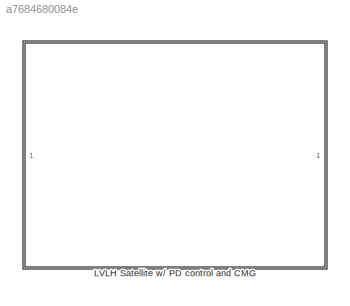
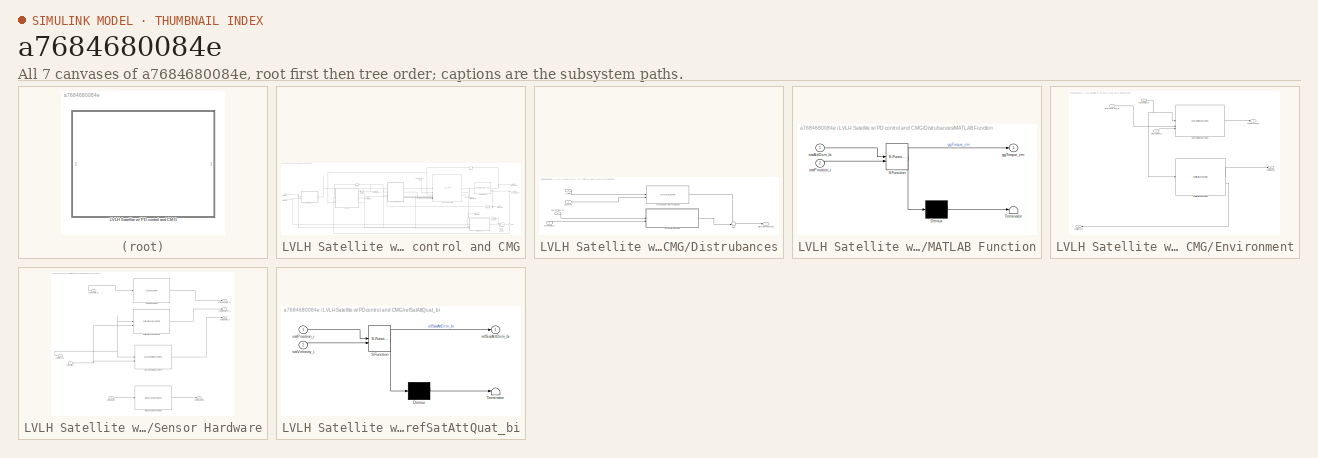
[diagram: thumbnail index - all 7 canvases of the model, root first then tree order]
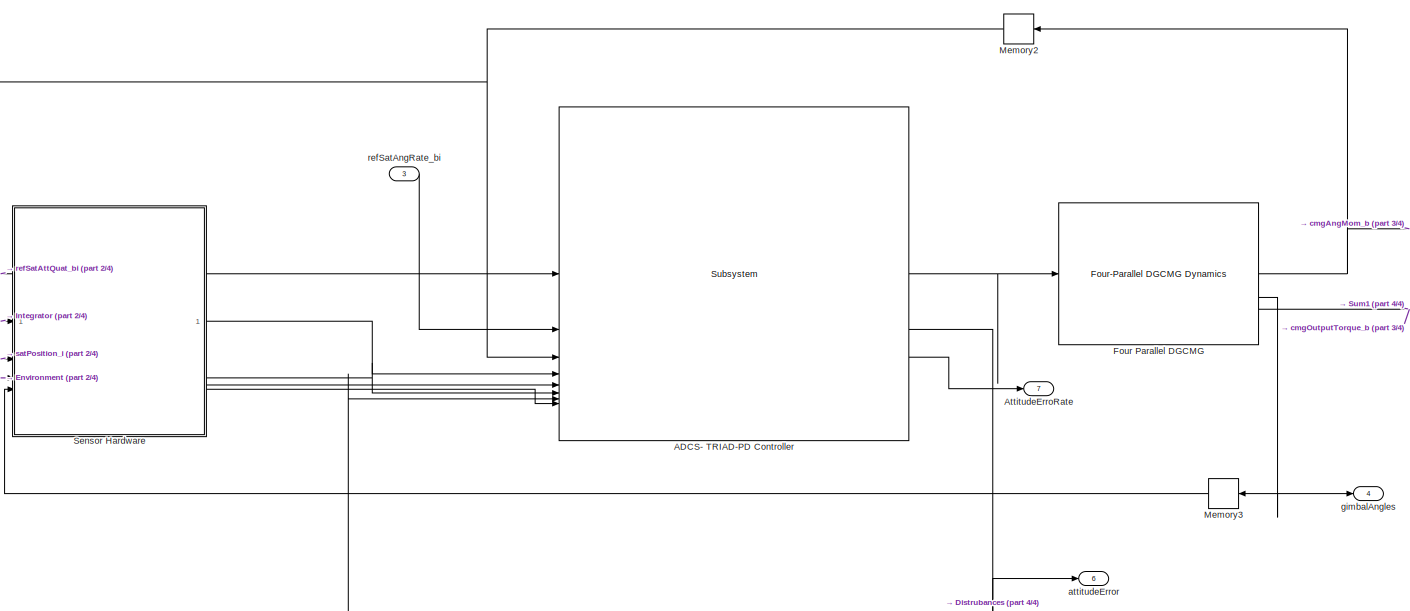
[diagram: LVLH Satellite w/ PD control and CMG - part 1/4, middle right region]
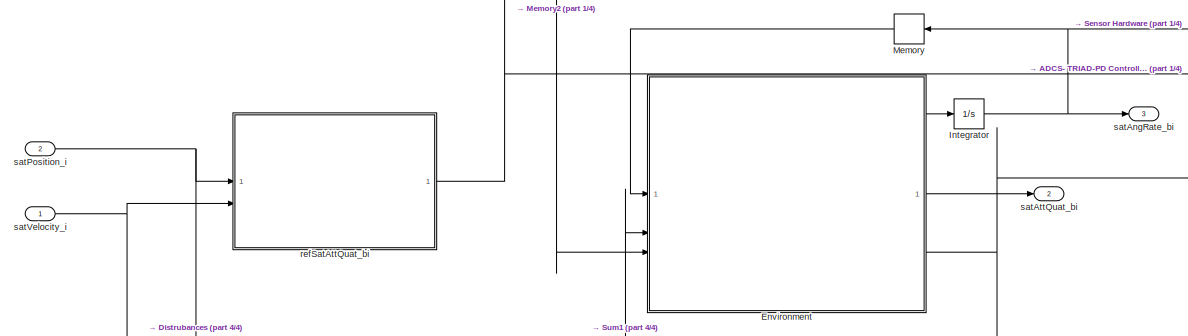
[diagram: LVLH Satellite w/ PD control and CMG - part 2/4, middle left region]
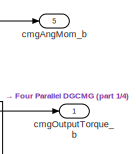
[diagram: LVLH Satellite w/ PD control and CMG - part 3/4, middle right region]
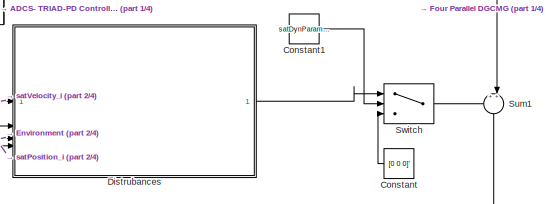
[diagram: LVLH Satellite w/ PD control and CMG - part 4/4, bottom right region]
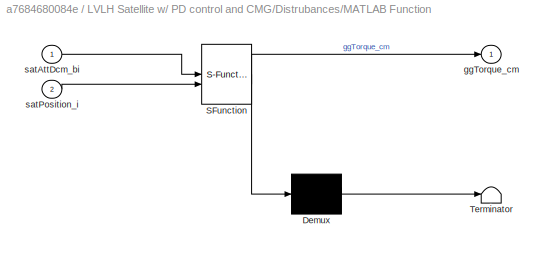
MODEL slx_a7684680084e
KIND library
CONFIG AbsTol = auto
CONFIG EnableMultiTasking = off
CONFIG FixedStep = auto
CONFIG MaxStep = auto
CONFIG MinStep = auto
CONFIG RelTol = 1e-3
CONFIG SampleTimeConstraint = Unconstrained
CONFIG SolverName = VariableStepAuto
CONFIG StartTime = 0.0
CONFIG StopTime = 10.0
BLOCK [SubSystem] LVLH Satellite w// PD control and CMG
BLOCK [Reference] LVLH Satellite w// PD control and CMG/ADCS- TRIAD-PD Controller  REF=satAttDcmPDController_sl/Subsystem
  SourceBlock = satAttDcmPDController_sl/Subsystem
BLOCK [Outport] LVLH Satellite w// PD control and CMG/AttitudeErroRate
  Port = 7
BLOCK [Constant] LVLH Satellite w// PD control and CMG/Constant
  NameLocation = top
  Value = [0 0 0]'
BLOCK [Constant] LVLH Satellite w// PD control and CMG/Constant1
  Value = satDynParams.distTorqueFlag
BLOCK [SubSystem] LVLH Satellite w// PD control and CMG/Distrubances
BLOCK [Reference] LVLH Satellite w// PD control and CMG/Distrubances/Atmoshperic Perturbations  REF=atmoAttDisturbanceISS_sl/MATLAB Function
  SourceBlock = atmoAttDisturbanceISS_sl/MATLAB Function
BLOCK [SubSystem] LVLH Satellite w// PD control and CMG/Distrubances/MATLAB Function
  ErrorFcn = Stateflow.Translate.translate
  PermitHierarchicalResolution = ExplicitOnly
  SFBlockType = MATLAB Function
  TreatAsAtomicUnit = on
BLOCK [Demux] LVLH Satellite w// PD control and CMG/Distrubances/MATLAB Function/ Demux 
  Outputs = 1
BLOCK [S-Function] LVLH Satellite w// PD control and CMG/Distrubances/MATLAB Function/ SFunction 
  EnableBusSupport = off
  FunctionName = sf_sfun
  PortCounts = [2 2]
  SFcnIsStateOwnerBlock = off
  SFunctionDeploymentMode = off
  Tag = Stateflow S-Function 1
BLOCK [Terminator] LVLH Satellite w// PD control and CMG/Distrubances/MATLAB Function/ Terminator 
BLOCK [Outport] LVLH Satellite w// PD control and CMG/Distrubances/MATLAB Function/ggTorque_cm
BLOCK [Inport] LVLH Satellite w// PD control and CMG/Distrubances/MATLAB Function/satAttDcm_bi
BLOCK [Inport] LVLH Satellite w// PD control and CMG/Distrubances/MATLAB Function/satPosition_i
  Port = 2
BLOCK [Sum] LVLH Satellite w// PD control and CMG/Distrubances/Sum
  Inputs = ++|
BLOCK [Inport] LVLH Satellite w// PD control and CMG/Distrubances/attError
  Port = 2
BLOCK [Outport] LVLH Satellite w// PD control and CMG/Distrubances/disturbanceTorque
BLOCK [Inport] LVLH Satellite w// PD control and CMG/Distrubances/satAttDcm_bi
  Port = 3
BLOCK [Inport] LVLH Satellite w// PD control and CMG/Distrubances/satPosition_i
  Port = 4
BLOCK [Inport] LVLH Satellite w// PD control and CMG/Distrubances/v_abs
BLOCK [SubSystem] LVLH Satellite w// PD control and CMG/Environment
BLOCK [Reference] LVLH Satellite w// PD control and CMG/Environment/Euler Rotational Dynamics   REF=satEulerDyn_sl/Euler Rotational Dynamics 
  SourceBlock = satEulerDyn_sl/Euler Rotational Dynamics
BLOCK [Reference] LVLH Satellite w// PD control and CMG/Environment/Satellite Attiude Kinematics  REF=satAttKinematics_sl/Satellite Attiude Kinematics
  SourceBlock = satAttKinematics_sl/Satellite Attiude Kinematics
BLOCK [Inport] LVLH Satellite w// PD control and CMG/Environment/cmgAngMom_b
  Port = 3
BLOCK [Inport] LVLH Satellite w// PD control and CMG/Environment/externalTorque_bi
  Port = 2
BLOCK [Outport] LVLH Satellite w// PD control and CMG/Environment/satAngAccel_bi
BLOCK [Inport] LVLH Satellite w// PD control and CMG/Environment/satAngRate_bi
BLOCK [Outport] LVLH Satellite w// PD control and CMG/Environment/satAttDcm_bi
  Port = 3
BLOCK [Outport] LVLH Satellite w// PD control and CMG/Environment/satAttQuat_bi
  Port = 2
BLOCK [Reference] LVLH Satellite w// PD control and CMG/Four Parallel DGCMG  REF=dgcmgFourParallelArray_sl/Four-Parallel DGCMG Dynamics
  SourceBlock = dgcmgFourParallelArray_sl/Four-Parallel DGCMG Dynamics
BLOCK [Integrator] LVLH Satellite w// PD control and CMG/Integrator
  InitialCondition = satDynParams.satAngRate0
BLOCK [Memory] LVLH Satellite w// PD control and CMG/Memory
  InitialCondition = satDynParams.satAngRate0
  NameLocation = top
BLOCK [Memory] LVLH Satellite w// PD control and CMG/Memory2
  InitialCondition = [0 0 0]'
  NameLocation = top
BLOCK [Memory] LVLH Satellite w// PD control and CMG/Memory3
  InitialCondition = hwParams.gimbalAngles0
  NameLocation = top
BLOCK [SubSystem] LVLH Satellite w// PD control and CMG/Sensor Hardware
BLOCK [Reference] LVLH Satellite w// PD control and CMG/Sensor Hardware/Earth Horizon Measurments  REF=earthHorizonSensorHW_sl/Earth Horizon Measurments
  SourceBlock = earthHorizonSensorHW_sl/Earth Horizon Measurments
BLOCK [Reference] LVLH Satellite w// PD control and CMG/Sensor Hardware/Gimbal Angle Measurments  REF=gimbalSensorHW_sl/Gimbal Angle Measurments
  SourceBlock = gimbalSensorHW_sl/Gimbal Angle Measurments
BLOCK [Reference] LVLH Satellite w// PD control and CMG/Sensor Hardware/Gyro Measurments  REF=gyroSensorHW_sl/Gyro Measurments
  SourceBlock = gyroSensorHW_sl/Gyro Measurments
BLOCK [Reference] LVLH Satellite w// PD control and CMG/Sensor Hardware/Magnetometer Measurments  REF=magnetometerSensorHW_sl/Magnetometer Measurments
  SourceBlock = magnetometerSensorHW_sl/Magnetometer Measurments
BLOCK [Outport] LVLH Satellite w// PD control and CMG/Sensor Hardware/estEarthHorizon_b
  Port = 2
BLOCK [Outport] LVLH Satellite w// PD control and CMG/Sensor Hardware/estGimbalRates
  Port = 4
BLOCK [Outport] LVLH Satellite w// PD control and CMG/Sensor Hardware/estMagField_b
  Port = 3
BLOCK [Outport] LVLH Satellite w// PD control and CMG/Sensor Hardware/estSatAngRate_bi
BLOCK [Inport] LVLH Satellite w// PD control and CMG/Sensor Hardware/gimbalRates
  Port = 4
BLOCK [Inport] LVLH Satellite w// PD control and CMG/Sensor Hardware/satAngRate_bi
BLOCK [Inport] LVLH Satellite w// PD control and CMG/Sensor Hardware/satAttDcm_bi
  Port = 3
BLOCK [Inport] LVLH Satellite w// PD control and CMG/Sensor Hardware/satPosition_i
  Port = 2
BLOCK [Sum] LVLH Satellite w// PD control and CMG/Sum1
  Inputs = ++|
  NameLocation = left
BLOCK [Switch] LVLH Satellite w// PD control and CMG/Switch
  InputSameDT = off
  SaturateOnIntegerOverflow = off
BLOCK [Outport] LVLH Satellite w// PD control and CMG/attitudeError
  Port = 6
BLOCK [Outport] LVLH Satellite w// PD control and CMG/cmgAngMom_b
  Port = 5
BLOCK [Outport] LVLH Satellite w// PD control and CMG/cmgOutputTorque_b
BLOCK [Outport] LVLH Satellite w// PD control and CMG/gimbalAngles
  Port = 4
BLOCK [Inport] LVLH Satellite w// PD control and CMG/refSatAngRate_bi
  Port = 3
BLOCK [SubSystem] LVLH Satellite w// PD control and CMG/refSatAttQuat_bi
  ErrorFcn = Stateflow.Translate.translate
  PermitHierarchicalResolution = ExplicitOnly
  SFBlockType = MATLAB Function
  TreatAsAtomicUnit = on
BLOCK [Demux] LVLH Satellite w// PD control and CMG/refSatAttQuat_bi/ Demux 
  Outputs = 1
BLOCK [S-Function] LVLH Satellite w// PD control and CMG/refSatAttQuat_bi/ SFunction 
  EnableBusSupport = off
  FunctionName = sf_sfun
  PortCounts = [2 2]
  SFcnIsStateOwnerBlock = off
  SFunctionDeploymentMode = off
  Tag = Stateflow S-Function 2
BLOCK [Terminator] LVLH Satellite w// PD control and CMG/refSatAttQuat_bi/ Terminator 
BLOCK [Outport] LVLH Satellite w// PD control and CMG/refSatAttQuat_bi/refSatAttDcm_bi
BLOCK [Inport] LVLH Satellite w// PD control and CMG/refSatAttQuat_bi/satPosition_i
BLOCK [Inport] LVLH Satellite w// PD control and CMG/refSatAttQuat_bi/satVelocity_i
  Port = 2
BLOCK [Outport] LVLH Satellite w// PD control and CMG/satAngRate_bi
  Port = 3
BLOCK [Outport] LVLH Satellite w// PD control and CMG/satAttQuat_bi
  Port = 2
BLOCK [Inport] LVLH Satellite w// PD control and CMG/satPosition_i
  Port = 2
BLOCK [Inport] LVLH Satellite w// PD control and CMG/satVelocity_i
LINE LVLH Satellite w// PD control and CMG/ADCS- TRIAD-PD Controller:1 -> LVLH Satellite w// PD control and CMG/Four Parallel DGCMG:1
NET LVLH Satellite w// PD control and CMG/ADCS- TRIAD-PD Controller:2 -> LVLH Satellite w// PD control and CMG/Distrubances:2, LVLH Satellite w// PD control and CMG/attitudeError:1
LINE LVLH Satellite w// PD control and CMG/ADCS- TRIAD-PD Controller:3 -> LVLH Satellite w// PD control and CMG/AttitudeErroRate:1
LINE LVLH Satellite w// PD control and CMG/Constant1:1 -> LVLH Satellite w// PD control and CMG/Switch:2
LINE LVLH Satellite w// PD control and CMG/Constant:1 -> LVLH Satellite w// PD control and CMG/Switch:3
LINE LVLH Satellite w// PD control and CMG/Distrubances/Atmoshperic Perturbations:1 -> LVLH Satellite w// PD control and CMG/Distrubances/Sum:1
LINE LVLH Satellite w// PD control and CMG/Distrubances/MATLAB Function:1 -> LVLH Satellite w// PD control and CMG/Distrubances/Sum:2
LINE LVLH Satellite w// PD control and CMG/Distrubances/Sum:1 -> LVLH Satellite w// PD control and CMG/Distrubances/disturbanceTorque:1
LINE LVLH Satellite w// PD control and CMG/Distrubances/attError:1 -> LVLH Satellite w// PD control and CMG/Distrubances/Atmoshperic Perturbations:2
LINE LVLH Satellite w// PD control and CMG/Distrubances/satAttDcm_bi:1 -> LVLH Satellite w// PD control and CMG/Distrubances/MATLAB Function:1
LINE LVLH Satellite w// PD control and CMG/Distrubances/satPosition_i:1 -> LVLH Satellite w// PD control and CMG/Distrubances/MATLAB Function:2
LINE LVLH Satellite w// PD control and CMG/Distrubances/v_abs:1 -> LVLH Satellite w// PD control and CMG/Distrubances/Atmoshperic Perturbations:1
LINE LVLH Satellite w// PD control and CMG/Distrubances:1 -> LVLH Satellite w// PD control and CMG/Switch:1
LINE LVLH Satellite w// PD control and CMG/Environment/Euler Rotational Dynamics :1 -> LVLH Satellite w// PD control and CMG/Environment/satAngAccel_bi:1
LINE LVLH Satellite w// PD control and CMG/Environment/Satellite Attiude Kinematics:1 -> LVLH Satellite w// PD control and CMG/Environment/satAttQuat_bi:1
LINE LVLH Satellite w// PD control and CMG/Environment/Satellite Attiude Kinematics:2 -> LVLH Satellite w// PD control and CMG/Environment/satAttDcm_bi:1
LINE LVLH Satellite w// PD control and CMG/Environment/cmgAngMom_b:1 -> LVLH Satellite w// PD control and CMG/Environment/Euler Rotational Dynamics :3
LINE LVLH Satellite w// PD control and CMG/Environment/externalTorque_bi:1 -> LVLH Satellite w// PD control and CMG/Environment/Euler Rotational Dynamics :2
NET LVLH Satellite w// PD control and CMG/Environment/satAngRate_bi:1 -> LVLH Satellite w// PD control and CMG/Environment/Euler Rotational Dynamics :1, LVLH Satellite w// PD control and CMG/Environment/Satellite Attiude Kinematics:1
LINE LVLH Satellite w// PD control and CMG/Environment:1 -> LVLH Satellite w// PD control and CMG/Integrator:1
LINE LVLH Satellite w// PD control and CMG/Environment:2 -> LVLH Satellite w// PD control and CMG/satAttQuat_bi:1
NET LVLH Satellite w// PD control and CMG/Environment:3 -> LVLH Satellite w// PD control and CMG/Distrubances:3, LVLH Satellite w// PD control and CMG/Sensor Hardware:3
NET LVLH Satellite w// PD control and CMG/Four Parallel DGCMG:1 -> LVLH Satellite w// PD control and CMG/Memory2:1, LVLH Satellite w// PD control and CMG/cmgAngMom_b:1
NET LVLH Satellite w// PD control and CMG/Four Parallel DGCMG:2 -> LVLH Satellite w// PD control and CMG/Memory3:1, LVLH Satellite w// PD control and CMG/gimbalAngles:1
NET LVLH Satellite w// PD control and CMG/Four Parallel DGCMG:3 -> LVLH Satellite w// PD control and CMG/Sum1:2, LVLH Satellite w// PD control and CMG/cmgOutputTorque_b:1
NET LVLH Satellite w// PD control and CMG/Integrator:1 -> LVLH Satellite w// PD control and CMG/Memory:1, LVLH Satellite w// PD control and CMG/Sensor Hardware:1, LVLH Satellite w// PD control and CMG/satAngRate_bi:1
NET LVLH Satellite w// PD control and CMG/Memory2:1 -> LVLH Satellite w// PD control and CMG/ADCS- TRIAD-PD Controller:3, LVLH Satellite w// PD control and CMG/Environment:3
LINE LVLH Satellite w// PD control and CMG/Memory3:1 -> LVLH Satellite w// PD control and CMG/Sensor Hardware:4
LINE LVLH Satellite w// PD control and CMG/Memory:1 -> LVLH Satellite w// PD control and CMG/Environment:1
LINE LVLH Satellite w// PD control and CMG/Sensor Hardware/Earth Horizon Measurments:1 -> LVLH Satellite w// PD control and CMG/Sensor Hardware/estEarthHorizon_b:1
LINE LVLH Satellite w// PD control and CMG/Sensor Hardware/Gimbal Angle Measurments:1 -> LVLH Satellite w// PD control and CMG/Sensor Hardware/estGimbalRates:1
LINE LVLH Satellite w// PD control and CMG/Sensor Hardware/Gyro Measurments:1 -> LVLH Satellite w// PD control and CMG/Sensor Hardware/estSatAngRate_bi:1
LINE LVLH Satellite w// PD control and CMG/Sensor Hardware/Magnetometer Measurments:1 -> LVLH Satellite w// PD control and CMG/Sensor Hardware/estMagField_b:1
LINE LVLH Satellite w// PD control and CMG/Sensor Hardware/gimbalRates:1 -> LVLH Satellite w// PD control and CMG/Sensor Hardware/Gimbal Angle Measurments:1
LINE LVLH Satellite w// PD control and CMG/Sensor Hardware/satAngRate_bi:1 -> LVLH Satellite w// PD control and CMG/Sensor Hardware/Gyro Measurments:1
NET LVLH Satellite w// PD control and CMG/Sensor Hardware/satAttDcm_bi:1 -> LVLH Satellite w// PD control and CMG/Sensor Hardware/Earth Horizon Measurments:1, LVLH Satellite w// PD control and CMG/Sensor Hardware/Magnetometer Measurments:1
NET LVLH Satellite w// PD control and CMG/Sensor Hardware/satPosition_i:1 -> LVLH Satellite w// PD control and CMG/Sensor Hardware/Earth Horizon Measurments:2, LVLH Satellite w// PD control and CMG/Sensor Hardware/Magnetometer Measurments:2
LINE LVLH Satellite w// PD control and CMG/Sensor Hardware:1 -> LVLH Satellite w// PD control and CMG/ADCS- TRIAD-PD Controller:4
LINE LVLH Satellite w// PD control and CMG/Sensor Hardware:2 -> LVLH Satellite w// PD control and CMG/ADCS- TRIAD-PD Controller:5
LINE LVLH Satellite w// PD control and CMG/Sensor Hardware:3 -> LVLH Satellite w// PD control and CMG/ADCS- TRIAD-PD Controller:6
LINE LVLH Satellite w// PD control and CMG/Sensor Hardware:4 -> LVLH Satellite w// PD control and CMG/ADCS- TRIAD-PD Controller:8
LINE LVLH Satellite w// PD control and CMG/Sum1:1 -> LVLH Satellite w// PD control and CMG/Environment:2
LINE LVLH Satellite w// PD control and CMG/Switch:1 -> LVLH Satellite w// PD control and CMG/Sum1:1
LINE LVLH Satellite w// PD control and CMG/refSatAngRate_bi:1 -> LVLH Satellite w// PD control and CMG/ADCS- TRIAD-PD Controller:2
LINE LVLH Satellite w// PD control and CMG/refSatAttQuat_bi:1 -> LVLH Satellite w// PD control and CMG/ADCS- TRIAD-PD Controller:1
NET LVLH Satellite w// PD control and CMG/satPosition_i:1 -> LVLH Satellite w// PD control and CMG/ADCS- TRIAD-PD Controller:7, LVLH Satellite w// PD control and CMG/Distrubances:4, LVLH Satellite w// PD control and CMG/Sensor Hardware:2, LVLH Satellite w// PD control and CMG/refSatAttQuat_bi:1
NET LVLH Satellite w// PD control and CMG/satVelocity_i:1 -> LVLH Satellite w// PD control and CMG/Distrubances:1, LVLH Satellite w// PD control and CMG/refSatAttQuat_bi:2
note: NET lines group one-source signal fan-out (src -> all destinations, sorted); 1:1 wires keep LINE
CHART LVLH Satellite w// PD control and CMG/refSatAttQuat_bi states=1 transitions=1
  STATE_LABEL 'eML_blk_kernel()'
  STATE_LABEL 'SCRIPT:\nfunction refSatAttDcm_bi = refAttDcm ( ...\n    satPosition_i,satVelocity_i)\n%----------------------------------------------------------------------\n% Calcualte Ref Sat Att DCM from inertial position and velocity\n     rHat = satPosition_i./norm(satPosition_i);\n    vHat = satVelocity_i./norm(satVelocity_i);\n    crossVec = cross(-rHat,vHat);\n    yHat = crossVec./norm(crossVec);\n    refSatAttD...<+37ch>'
CHART LVLH Satellite w// PD control and CMG/Distrubances/MATLAB Function states=1 transitions=1
  STATE_LABEL 'eML_blk_kernel()'
  STATE_LABEL 'SCRIPT:\nfunction ggTorque_cm = gravity_gradient ( ...\n    satAttDcm_bi,satPosition_i)...%inputs)\n%-------------------------------------------------------------------------------\n%Torque Calculations\n\nr_b= satAttDcm_bi*satPosition_i; % [m]\nmu = 3.98e14; %m^3/s^2\n\nJb = [70942261    0 0; 0  59070966   0; 0   0 123909888];\n      %  [70942261 3512761 3543989;\n      % 3512761 59070966 -2768801;   %kg*m^...<+117ch>'
CHART  states=0 transitions=0
CHART  states=0 transitions=0
